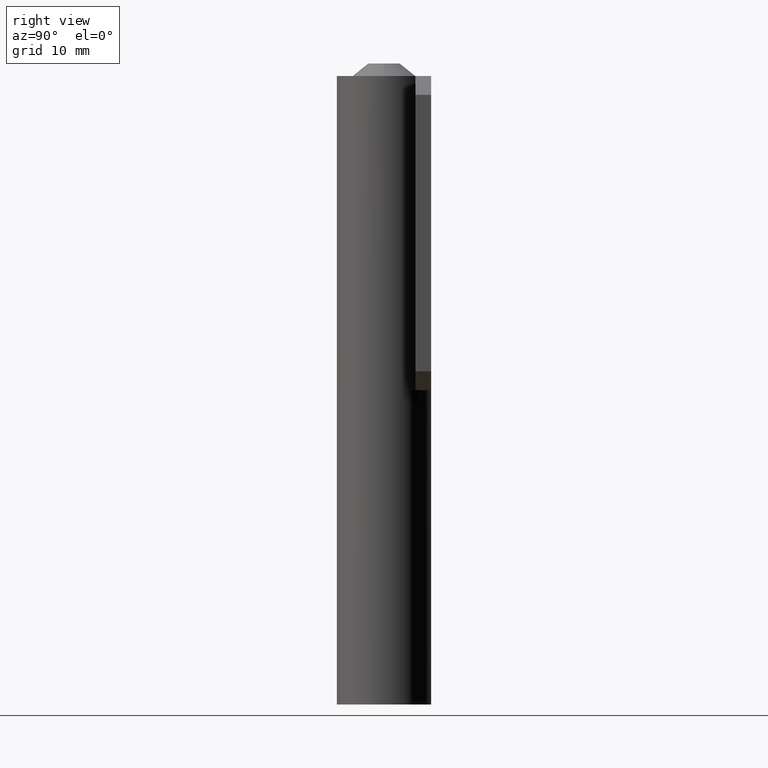
[diagram: clean part render]
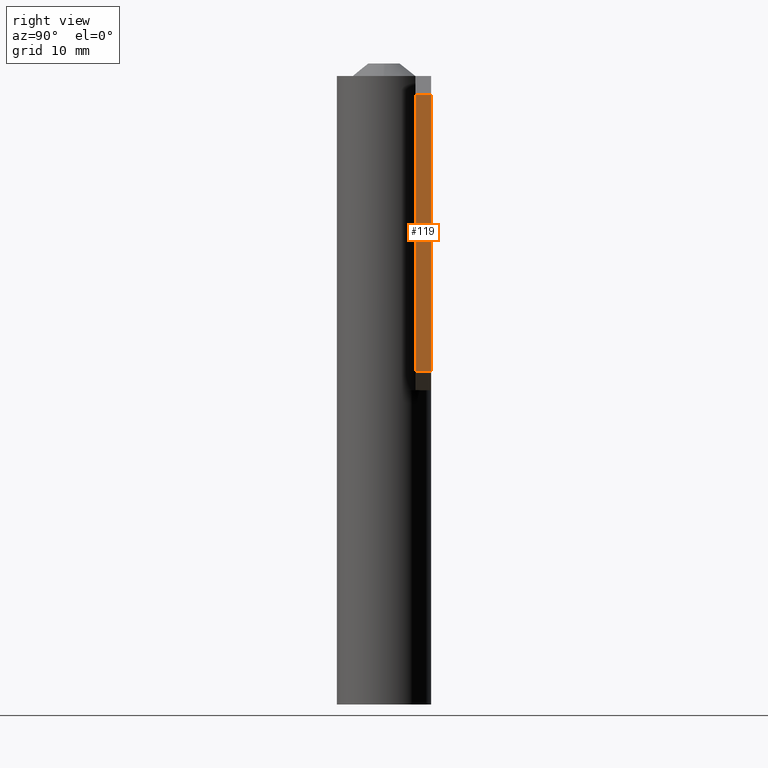
[diagram: same view with one face highlighted and labeled with its STEP entity id]
A machine part, right view. The second image highlights one B-rep face of the part: STEP entity #119.
In plain terms, the highlighted planar face has unit normal (-1, 0, 0).
Its self-contained STEP definition (entity closure, byte-faithful):
#119=ADVANCED_FACE('',(#210),#209,.F.);
#209=PLANE('',#447);
#210=FACE_OUTER_BOUND('',#448,.T.);
#444=CARTESIAN_POINT('',(2.70000000000E+001,4.75000000000E+000,-1.40000000000E+000));
#445=DIRECTION('',(-1.00000000000E+000,0.00000000000E+000,0.00000000000E+000));
#446=DIRECTION('',(0.00000000000E+000,0.00000000000E+000,1.00000000000E+000));
#447=AXIS2_PLACEMENT_3D('',#444,#445,#446);
#448=EDGE_LOOP('',(#602,#603,#604,#605));
#602=ORIENTED_EDGE('',*,*,#726,.F.);
#603=ORIENTED_EDGE('',*,*,#703,.T.);
#604=ORIENTED_EDGE('',*,*,#724,.T.);
#605=ORIENTED_EDGE('',*,*,#701,.T.);
#701=EDGE_CURVE('',#764,#778,#785,.T.);
#703=EDGE_CURVE('',#799,#791,#800,.T.);
#724=EDGE_CURVE('',#791,#764,#943,.T.);
#726=EDGE_CURVE('',#799,#778,#955,.T.);
#764=VERTEX_POINT('',#1196);
#778=VERTEX_POINT('',#1204);
#785=LINE('',#1208,#1209);
#791=VERTEX_POINT('',#1211);
#799=VERTEX_POINT('',#1216);
#800=LINE('',#1217,#1218);
#943=LINE('',#1309,#1310);
#955=LINE('',#1315,#1316);
#1196=CARTESIAN_POINT('',(2.70000000000E+001,7.50000000000E+000,4.70000000000E+001));
#1204=CARTESIAN_POINT('',(2.70000000000E+001,5.00000000000E+000,4.70000000000E+001));
#1208=CARTESIAN_POINT('',(2.70000000000E+001,7.50000000000E+000,4.70000000000E+001));
#1209=VECTOR('',#1210,2.50000000000E+000);
#1210=DIRECTION('',(0.00000000000E+000,-1.00000000000E+000,0.00000000000E+000));
#1211=CARTESIAN_POINT('',(2.70000000000E+001,7.50000000000E+000,3.00000000000E+000));
#1216=CARTESIAN_POINT('',(2.70000000000E+001,5.00000000000E+000,3.00000000000E+000));
#1217=CARTESIAN_POINT('',(2.70000000000E+001,5.00000000000E+000,3.00000000000E+000));
#1218=VECTOR('',#1219,2.50000000000E+000);
#1219=DIRECTION('',(0.00000000000E+000,1.00000000000E+000,0.00000000000E+000));
#1309=CARTESIAN_POINT('',(2.70000000000E+001,7.50000000000E+000,3.00000000000E+000));
#1310=VECTOR('',#1311,4.40000000000E+001);
#1311=DIRECTION('',(0.00000000000E+000,0.00000000000E+000,1.00000000000E+000));
#1315=CARTESIAN_POINT('',(2.70000000000E+001,5.00000000000E+000,3.00000000000E+000));
#1316=VECTOR('',#1317,4.40000000000E+001);
#1317=DIRECTION('',(0.00000000000E+000,0.00000000000E+000,1.00000000000E+000));